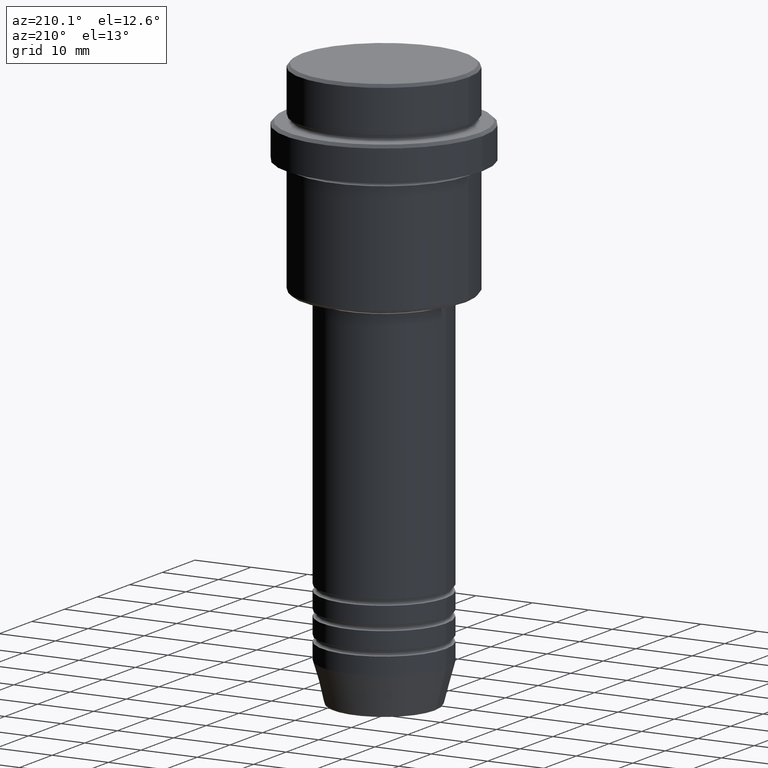
[diagram: clean part render]
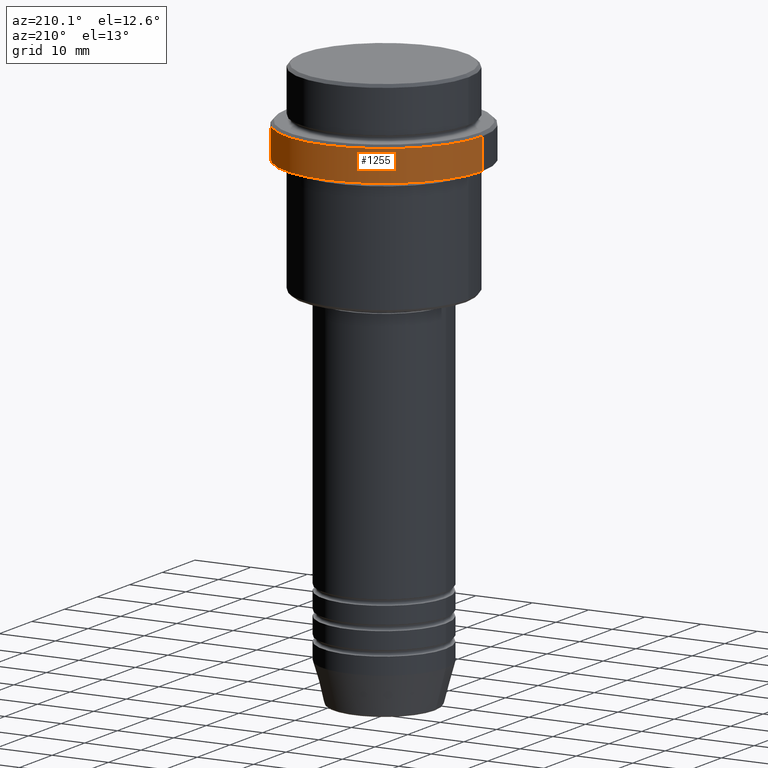
[diagram: same view with one face highlighted and labeled with its STEP entity id]
A machine part, auxiliary view. The second image highlights one B-rep face of the part: STEP entity #1255.
In plain terms, the highlighted cylindrical surface (partial cylindrical patch) has radius 17.5 mm, axis along (-0, -0, 1).
Its self-contained STEP definition (entity closure, byte-faithful):
#81 = CARTESIAN_POINT ( 'NONE',  ( -17.50000000000000000, 2.143131898507868248E-15, 0.000000000000000000 ) ) ;
#108 = EDGE_CURVE ( 'NONE', #331, #856, #1159, .T. ) ;
#133 = FACE_OUTER_BOUND ( 'NONE', #696, .T. ) ;
#186 = DIRECTION ( 'NONE',  ( -0.000000000000000000, -0.000000000000000000, 1.000000000000000000 ) ) ;
#194 = VERTEX_POINT ( 'NONE', #401 ) ;
#201 = VERTEX_POINT ( 'NONE', #989 ) ;
#221 = CARTESIAN_POINT ( 'NONE',  ( -17.50000000000000000, 2.143131898507868248E-15, -9.500000000000000000 ) ) ;
#235 = DIRECTION ( 'NONE',  ( 1.000000000000000000, 0.000000000000000000, 0.000000000000000000 ) ) ;
#246 = CARTESIAN_POINT ( 'NONE',  ( 0.000000000000000000, 0.000000000000000000, 0.000000000000000000 ) ) ;
#255 = AXIS2_PLACEMENT_3D ( 'NONE', #362, #799, #564 ) ;
#331 = VERTEX_POINT ( 'NONE', #221 ) ;
#362 = CARTESIAN_POINT ( 'NONE',  ( 0.000000000000000000, 0.000000000000000000, -15.00000000000000000 ) ) ;
#394 = ORIENTED_EDGE ( 'NONE', *, *, #836, .T. ) ;
#401 = CARTESIAN_POINT ( 'NONE',  ( 17.50000000000000000, 0.000000000000000000, -15.00000000000000000 ) ) ;
#452 = AXIS2_PLACEMENT_3D ( 'NONE', #246, #580, #235 ) ;
#501 = DIRECTION ( 'NONE',  ( 0.000000000000000000, 0.000000000000000000, -1.000000000000000000 ) ) ;
#507 = DIRECTION ( 'NONE',  ( 1.000000000000000000, 0.000000000000000000, 0.000000000000000000 ) ) ;
#564 = DIRECTION ( 'NONE',  ( 1.000000000000000000, 0.000000000000000000, 0.000000000000000000 ) ) ;
#580 = DIRECTION ( 'NONE',  ( -0.000000000000000000, -0.000000000000000000, 1.000000000000000000 ) ) ;
#615 = ORIENTED_EDGE ( 'NONE', *, *, #1395, .F. ) ;
#696 = EDGE_LOOP ( 'NONE', ( #394, #1078, #1114, #615 ) ) ;
#799 = DIRECTION ( 'NONE',  ( -0.000000000000000000, -0.000000000000000000, 1.000000000000000000 ) ) ;
#805 = VECTOR ( 'NONE', #1207, 1000.000000000000000 ) ;
#812 = VECTOR ( 'NONE', #186, 1000.000000000000000 ) ;
#836 = EDGE_CURVE ( 'NONE', #194, #201, #1327, .T. ) ;
#856 = VERTEX_POINT ( 'NONE', #914 ) ;
#894 = AXIS2_PLACEMENT_3D ( 'NONE', #1262, #501, #507 ) ;
#914 = CARTESIAN_POINT ( 'NONE',  ( 17.50000000000000000, 0.000000000000000000, -9.500000000000000000 ) ) ;
#989 = CARTESIAN_POINT ( 'NONE',  ( -17.50000000000000000, 2.143131898507868248E-15, -15.00000000000000000 ) ) ;
#1043 = EDGE_CURVE ( 'NONE', #201, #331, #1066, .T. ) ;
#1066 = LINE ( 'NONE', #81, #812 ) ;
#1078 = ORIENTED_EDGE ( 'NONE', *, *, #1043, .T. ) ;
#1085 = LINE ( 'NONE', #1193, #805 ) ;
#1114 = ORIENTED_EDGE ( 'NONE', *, *, #108, .T. ) ;
#1159 = CIRCLE ( 'NONE', #894, 17.50000000000000000 ) ;
#1193 = CARTESIAN_POINT ( 'NONE',  ( 17.50000000000000000, 0.000000000000000000, 0.000000000000000000 ) ) ;
#1207 = DIRECTION ( 'NONE',  ( -0.000000000000000000, -0.000000000000000000, 1.000000000000000000 ) ) ;
#1213 = CYLINDRICAL_SURFACE ( 'NONE', #452, 17.50000000000000000 ) ;
#1255 = ADVANCED_FACE ( 'NONE', ( #133 ), #1213, .T. ) ;
#1262 = CARTESIAN_POINT ( 'NONE',  ( 0.000000000000000000, 0.000000000000000000, -9.500000000000000000 ) ) ;
#1327 = CIRCLE ( 'NONE', #255, 17.50000000000000000 ) ;
#1395 = EDGE_CURVE ( 'NONE', #194, #856, #1085, .T. ) ;